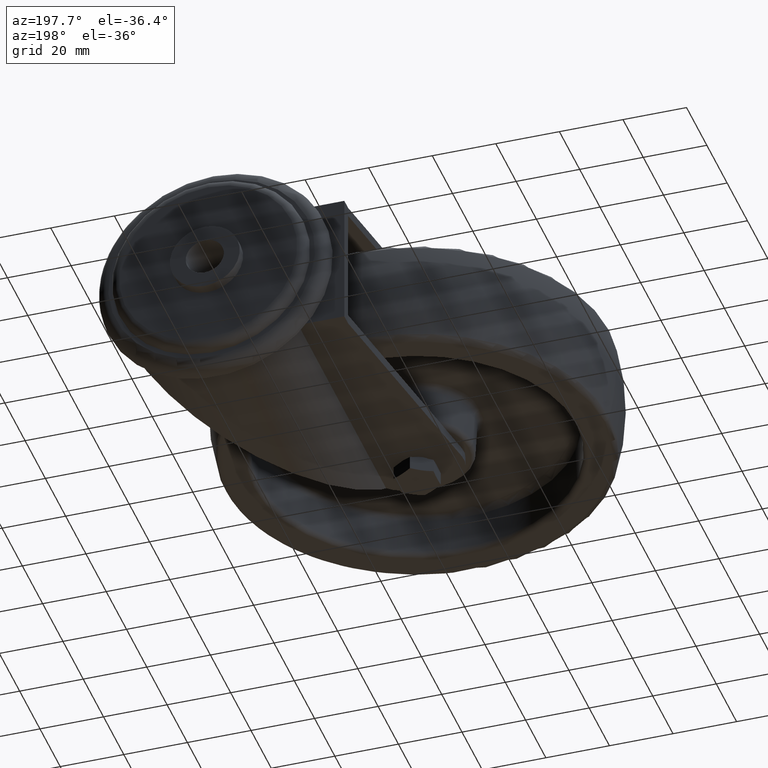
[diagram: clean part render]
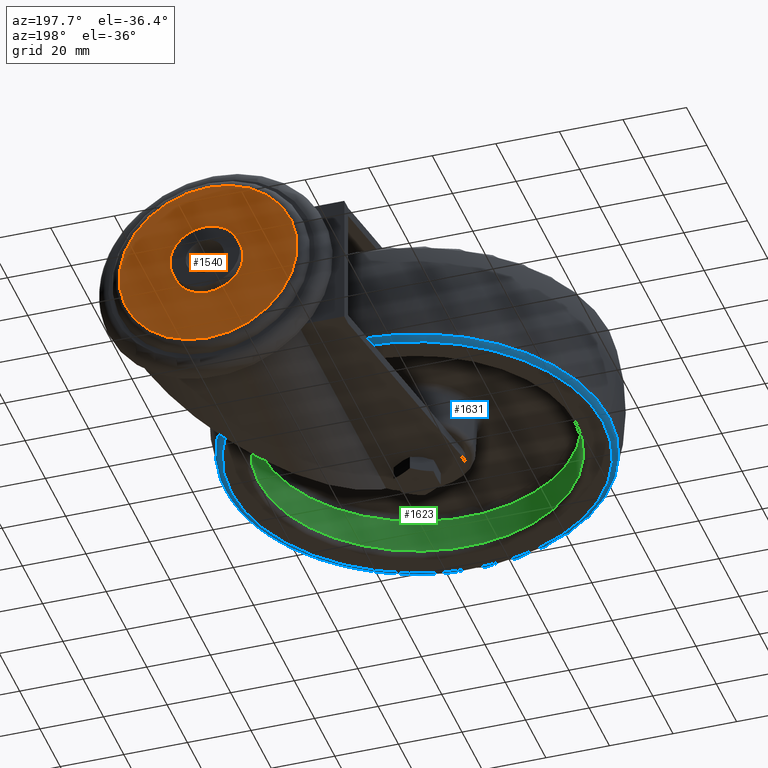
[diagram: same view with three faces highlighted in distinct colors, each labeled with its STEP entity id]
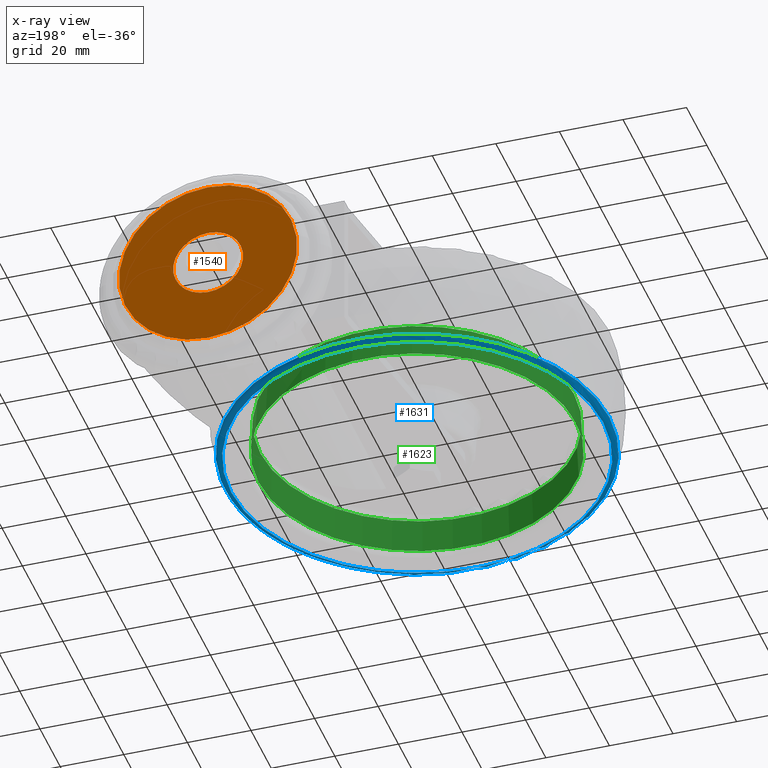
[diagram: x-ray of the same camera — body ghosted, the three highlighted faces saturated]
A machine part, auxiliary view with three faces highlighted in distinct colors.
The next image is the same camera in x-ray (body ghosted, the three faces saturated) — at least one of them is partly hidden behind the body in this view.
Their STEP definitions:

[orange] entity #1540 — the highlighted planar face has unit normal (0, -1, 0).
#150=FACE_BOUND('',#337,.T.);
#175=PLANE('',#1778);
#229=FACE_OUTER_BOUND('',#336,.T.);
#336=EDGE_LOOP('',(#1120));
#337=EDGE_LOOP('',(#1121));
#462=CIRCLE('',#1777,11.);
#463=CIRCLE('',#1779,28.025);
#723=VERTEX_POINT('',#2603);
#724=VERTEX_POINT('',#2607);
#876=EDGE_CURVE('',#723,#723,#462,.T.);
#878=EDGE_CURVE('',#724,#724,#463,.T.);
#1120=ORIENTED_EDGE('',*,*,#878,.F.);
#1121=ORIENTED_EDGE('',*,*,#876,.T.);
#1540=ADVANCED_FACE('',(#229,#150),#175,.F.);
#1777=AXIS2_PLACEMENT_3D('',#2604,#2064,#2065);
#1778=AXIS2_PLACEMENT_3D('',#2606,#2067,#2068);
#1779=AXIS2_PLACEMENT_3D('',#2608,#2069,#2070);
#2064=DIRECTION('center_axis',(0.,-1.,0.));
#2065=DIRECTION('ref_axis',(0.,0.,-1.));
#2067=DIRECTION('center_axis',(0.,-1.,0.));
#2068=DIRECTION('ref_axis',(0.,0.,-1.));
#2069=DIRECTION('center_axis',(0.,-1.,0.));
#2070=DIRECTION('ref_axis',(0.,0.,-1.));
#2603=CARTESIAN_POINT('',(37.,90.2,11.));
#2604=CARTESIAN_POINT('Origin',(37.,90.2,0.));
#2606=CARTESIAN_POINT('Origin',(48.,90.2,0.));
#2607=CARTESIAN_POINT('',(37.,90.2,28.025));
#2608=CARTESIAN_POINT('Origin',(37.,90.2,0.));

[blue] entity #1631 — the highlighted toroidal blend (fillet) surface has major radius 58.4808 mm and minor (blend) radius 2 mm.
#148=TOROIDAL_SURFACE('',#1960,58.4807660688538,2.);
#320=FACE_OUTER_BOUND('',#446,.T.);
#446=EDGE_LOOP('',(#1502,#1503,#1504,#1505));
#534=CIRCLE('',#1933,58.4807660688538);
#551=CIRCLE('',#1959,60.4140145339399);
#552=CIRCLE('',#1961,2.);
#813=VERTEX_POINT('',#3027);
#824=VERTEX_POINT('',#3066);
#1030=EDGE_CURVE('',#813,#813,#534,.T.);
#1050=EDGE_CURVE('',#824,#824,#551,.T.);
#1051=EDGE_CURVE('',#824,#813,#552,.T.);
#1502=ORIENTED_EDGE('',*,*,#1050,.F.);
#1503=ORIENTED_EDGE('',*,*,#1051,.T.);
#1504=ORIENTED_EDGE('',*,*,#1030,.T.);
#1505=ORIENTED_EDGE('',*,*,#1051,.F.);
#1631=ADVANCED_FACE('',(#320),#148,.T.);
#1933=AXIS2_PLACEMENT_3D('',#3028,#2410,#2411);
#1959=AXIS2_PLACEMENT_3D('',#3068,#2465,#2466);
#1960=AXIS2_PLACEMENT_3D('',#3069,#2467,#2468);
#1961=AXIS2_PLACEMENT_3D('',#3070,#2469,#2470);
#2410=DIRECTION('center_axis',(0.,0.,1.));
#2411=DIRECTION('ref_axis',(1.,0.,0.));
#2465=DIRECTION('center_axis',(0.,0.,1.));
#2466=DIRECTION('ref_axis',(1.,0.,0.));
#2467=DIRECTION('center_axis',(0.,0.,1.));
#2468=DIRECTION('ref_axis',(1.,0.,0.));
#2469=DIRECTION('center_axis',(1.22464679914735E-16,-1.,0.));
#2470=DIRECTION('ref_axis',(-1.,-1.22464679914735E-16,0.));
#3027=CARTESIAN_POINT('',(-58.4807660688538,-7.16182829779069E-15,-17.5));
#3028=CARTESIAN_POINT('Origin',(0.,0.,-17.5));
#3066=CARTESIAN_POINT('',(-60.4140145339399,-7.39858295226316E-15,-16.0123966942149));
#3068=CARTESIAN_POINT('Origin',(0.,0.,-16.0123966942149));
#3069=CARTESIAN_POINT('Origin',(0.,0.,-15.5));
#3070=CARTESIAN_POINT('Origin',(-58.4807660688538,-7.16182829779069E-15,
-15.5));

[green] entity #1623 — the highlighted conical surface has half-angle 3 deg.
#100=CONICAL_SURFACE('',#1939,49.9006700639206,0.0523598775598294);
#312=FACE_OUTER_BOUND('',#438,.T.);
#438=EDGE_LOOP('',(#1467,#1468,#1469,#1470,#1471,#1472));
#537=CIRCLE('',#1937,49.9006700639206);
#538=CIRCLE('',#1938,49.9006700639206);
#539=CIRCLE('',#1940,49.3445434288459);
#540=CIRCLE('',#1941,49.3445434288459);
#619=LINE('',#3042,#683);
#683=VECTOR('',#2428,49.9006700639206);
#815=VERTEX_POINT('',#3032);
#816=VERTEX_POINT('',#3034);
#817=VERTEX_POINT('',#3038);
#818=VERTEX_POINT('',#3039);
#1033=EDGE_CURVE('',#815,#816,#537,.T.);
#1034=EDGE_CURVE('',#816,#815,#538,.T.);
#1035=EDGE_CURVE('',#817,#818,#539,.T.);
#1036=EDGE_CURVE('',#818,#817,#540,.T.);
#1037=EDGE_CURVE('',#817,#816,#619,.T.);
#1467=ORIENTED_EDGE('',*,*,#1035,.T.);
#1468=ORIENTED_EDGE('',*,*,#1036,.T.);
#1469=ORIENTED_EDGE('',*,*,#1037,.T.);
#1470=ORIENTED_EDGE('',*,*,#1033,.F.);
#1471=ORIENTED_EDGE('',*,*,#1034,.F.);
#1472=ORIENTED_EDGE('',*,*,#1037,.F.);
#1623=ADVANCED_FACE('',(#312),#100,.F.);
#1937=AXIS2_PLACEMENT_3D('',#3035,#2418,#2419);
#1938=AXIS2_PLACEMENT_3D('',#3036,#2420,#2421);
#1939=AXIS2_PLACEMENT_3D('',#3037,#2422,#2423);
#1940=AXIS2_PLACEMENT_3D('',#3040,#2424,#2425);
#1941=AXIS2_PLACEMENT_3D('',#3041,#2426,#2427);
#2418=DIRECTION('center_axis',(0.,0.,1.));
#2419=DIRECTION('ref_axis',(1.,0.,0.));
#2420=DIRECTION('center_axis',(0.,0.,1.));
#2421=DIRECTION('ref_axis',(1.,0.,0.));
#2422=DIRECTION('center_axis',(0.,0.,-1.));
#2423=DIRECTION('ref_axis',(-1.,0.,0.));
#2424=DIRECTION('center_axis',(0.,0.,1.));
#2425=DIRECTION('ref_axis',(1.,0.,0.));
#2426=DIRECTION('center_axis',(0.,0.,1.));
#2427=DIRECTION('ref_axis',(1.,0.,0.));
#2428=DIRECTION('',(0.0523359562429433,-6.40930612932365E-18,-0.998629534754574));
#3032=CARTESIAN_POINT('',(-49.9006700639206,-6.11106958690885E-15,-15.6046719124859));
#3034=CARTESIAN_POINT('',(49.9006700639206,0.,-15.6046719124859));
#3035=CARTESIAN_POINT('Origin',(0.,0.,-15.6046719124859));
#3036=CARTESIAN_POINT('Origin',(0.,0.,-15.6046719124859));
#3037=CARTESIAN_POINT('Origin',(0.,0.,-15.6046719124859));
#3038=CARTESIAN_POINT('',(49.3445434288459,0.,-4.99314357293913));
#3039=CARTESIAN_POINT('',(-49.3445434288459,-6.04296371655237E-15,-4.99314357293913));
#3040=CARTESIAN_POINT('Origin',(0.,0.,-4.99314357293913));
#3041=CARTESIAN_POINT('Origin',(0.,0.,-4.99314357293913));
#3042=CARTESIAN_POINT('',(49.9006700639206,-6.11106958690885E-15,-15.6046719124859));